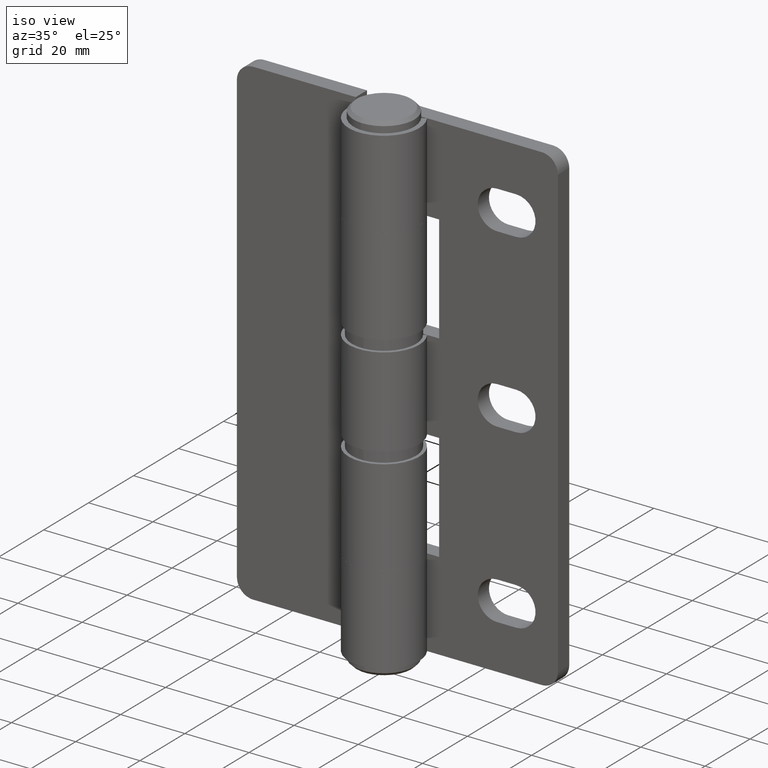
[diagram: clean part render]
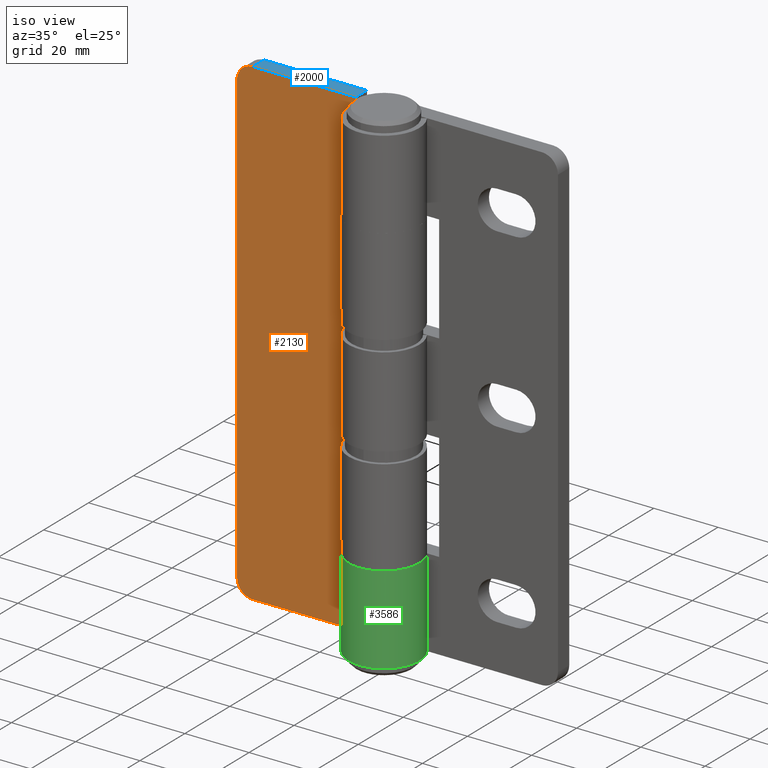
[diagram: same view with three faces highlighted in distinct colors, each labeled with its STEP entity id]
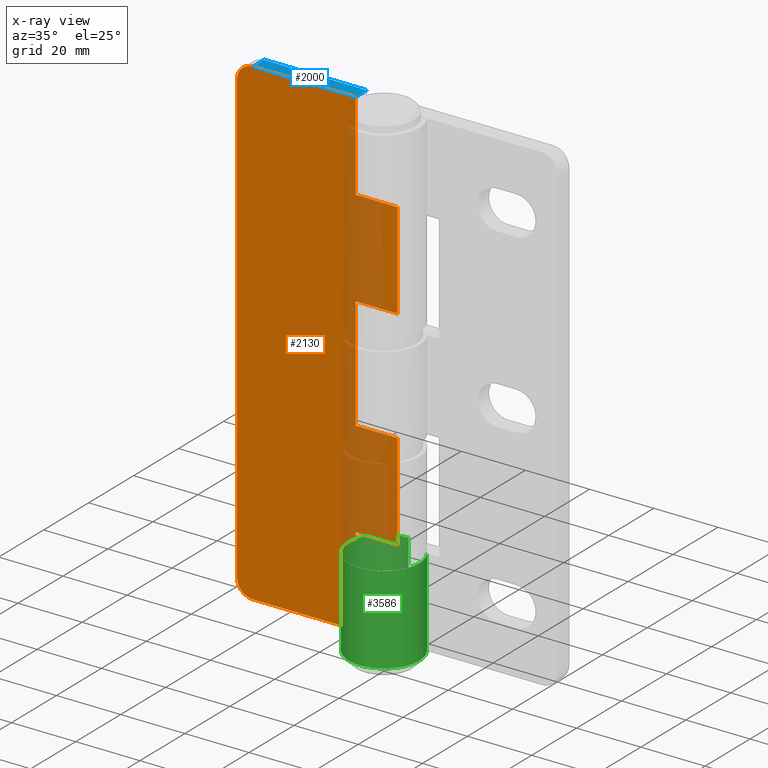
[diagram: x-ray of the same camera — body ghosted, the three highlighted faces saturated]
A machine part, iso view with three faces highlighted in distinct colors.
The next image is the same camera in x-ray (body ghosted, the three faces saturated) — at least one of them is partly hidden behind the body in this view.
Their STEP definitions:

[orange] entity #2130 — the highlighted face is a freeform B-spline surface patch.
#1359=CARTESIAN_POINT('',(-13.0,6.0,122.500000000000000));
#1360=VERTEX_POINT('',#1359);
#1366=CARTESIAN_POINT('',(3.673819E-016,6.0,122.500000000000000));
#1367=VERTEX_POINT('',#1366);
#1368=CARTESIAN_POINT('',(3.673819E-016,6.0,122.500000000000000));
#1369=CARTESIAN_POINT('',(-13.0,6.0,122.500000000000000));
#1370=QUASI_UNIFORM_CURVE('',1,(#1368,#1369),.UNSPECIFIED.,.F.,.U.);
#1371=EDGE_CURVE('',#1367,#1360,#1370,.T.);
#1436=CARTESIAN_POINT('',(-13.0,6.0,150.0));
#1437=VERTEX_POINT('',#1436);
#1443=CARTESIAN_POINT('',(-13.0,6.0,122.500000000000000));
#1444=CARTESIAN_POINT('',(-13.0,6.0,150.0));
#1445=QUASI_UNIFORM_CURVE('',1,(#1443,#1444),.UNSPECIFIED.,.F.,.U.);
#1446=EDGE_CURVE('',#1360,#1437,#1445,.T.);
#1465=CARTESIAN_POINT('',(-13.0,6.0,57.500000000000000));
#1466=VERTEX_POINT('',#1465);
#1472=CARTESIAN_POINT('',(3.673819E-016,6.0,57.500000000000000));
#1473=VERTEX_POINT('',#1472);
#1474=CARTESIAN_POINT('',(3.673819E-016,6.0,57.500000000000000));
#1475=CARTESIAN_POINT('',(-13.0,6.0,57.500000000000000));
#1476=QUASI_UNIFORM_CURVE('',1,(#1474,#1475),.UNSPECIFIED.,.F.,.U.);
#1477=EDGE_CURVE('',#1473,#1466,#1476,.T.);
#1542=CARTESIAN_POINT('',(-13.0,6.0,92.500000000000000));
#1543=VERTEX_POINT('',#1542);
#1549=CARTESIAN_POINT('',(-13.0,6.0,57.500000000000000));
#1550=CARTESIAN_POINT('',(-13.0,6.0,92.500000000000000));
#1551=QUASI_UNIFORM_CURVE('',1,(#1549,#1550),.UNSPECIFIED.,.F.,.U.);
#1552=EDGE_CURVE('',#1466,#1543,#1551,.T.);
#1598=CARTESIAN_POINT('',(3.673819E-016,6.0,92.500000000000000));
#1599=VERTEX_POINT('',#1598);
#1619=CARTESIAN_POINT('',(-13.0,6.0,92.500000000000000));
#1620=CARTESIAN_POINT('',(3.673819E-016,6.0,92.500000000000000));
#1621=QUASI_UNIFORM_CURVE('',1,(#1619,#1620),.UNSPECIFIED.,.F.,.U.);
#1622=EDGE_CURVE('',#1543,#1599,#1621,.T.);
#1632=CARTESIAN_POINT('',(-13.0,6.0,0.0));
#1633=VERTEX_POINT('',#1632);
#1648=CARTESIAN_POINT('',(-13.0,6.0,27.500000000000000));
#1649=VERTEX_POINT('',#1648);
#1655=CARTESIAN_POINT('',(-13.0,6.0,0.0));
#1656=CARTESIAN_POINT('',(-13.0,6.0,27.500000000000000));
#1657=QUASI_UNIFORM_CURVE('',1,(#1655,#1656),.UNSPECIFIED.,.F.,.U.);
#1658=EDGE_CURVE('',#1633,#1649,#1657,.T.);
#1704=CARTESIAN_POINT('',(3.673819E-016,6.0,27.500000000000000));
#1705=VERTEX_POINT('',#1704);
#1725=CARTESIAN_POINT('',(-13.0,6.0,27.500000000000000));
#1726=CARTESIAN_POINT('',(3.673819E-016,6.0,27.500000000000000));
#1727=QUASI_UNIFORM_CURVE('',1,(#1725,#1726),.UNSPECIFIED.,.F.,.U.);
#1728=EDGE_CURVE('',#1649,#1705,#1727,.T.);
#1747=CARTESIAN_POINT('',(-50.0,6.0,5.0));
#1748=VERTEX_POINT('',#1747);
#1749=CARTESIAN_POINT('',(-45.0,6.0,0.0));
#1750=VERTEX_POINT('',#1749);
#1751=CARTESIAN_POINT('',(-49.999999999999993,6.0,5.0));
#1752=CARTESIAN_POINT('',(-49.999999999999986,6.0,0.0));
#1753=CARTESIAN_POINT('',(-45.0,6.0,0.0));
#1761=(BOUNDED_CURVE()B_SPLINE_CURVE(2,(#1751,#1752,#1753),.UNSPECIFIED.,.F.,.U.)CURVE()GEOMETRIC_REPRESENTATION_ITEM()QUASI_UNIFORM_CURVE()RATIONAL_B_SPLINE_CURVE((1.0,0.707106781186548,1.0))REPRESENTATION_ITEM(''));
#1762=EDGE_CURVE('',#1748,#1750,#1761,.T.);
#1808=CARTESIAN_POINT('',(-45.0,6.0,150.0));
#1809=VERTEX_POINT('',#1808);
#1810=CARTESIAN_POINT('',(-50.0,6.0,145.0));
#1811=VERTEX_POINT('',#1810);
#1812=CARTESIAN_POINT('',(-45.0,6.0,150.0));
#1813=CARTESIAN_POINT('',(-49.999999999999986,6.0,149.999999999999940));
#1814=CARTESIAN_POINT('',(-49.999999999999993,6.0,145.0));
#1822=(BOUNDED_CURVE()B_SPLINE_CURVE(2,(#1812,#1813,#1814),.UNSPECIFIED.,.F.,.U.)CURVE()GEOMETRIC_REPRESENTATION_ITEM()QUASI_UNIFORM_CURVE()RATIONAL_B_SPLINE_CURVE((1.0,0.707106781186548,1.0))REPRESENTATION_ITEM(''));
#1823=EDGE_CURVE('',#1809,#1811,#1822,.T.);
#1866=CARTESIAN_POINT('',(-50.0,6.0,145.0));
#1867=CARTESIAN_POINT('',(-50.0,6.0,5.0));
#1868=QUASI_UNIFORM_CURVE('',1,(#1866,#1867),.UNSPECIFIED.,.F.,.U.);
#1869=EDGE_CURVE('',#1811,#1748,#1868,.T.);
#1886=CARTESIAN_POINT('',(-13.0,6.0,0.0));
#1887=CARTESIAN_POINT('',(-45.0,6.0,0.0));
#1888=QUASI_UNIFORM_CURVE('',1,(#1886,#1887),.UNSPECIFIED.,.F.,.U.);
#1889=EDGE_CURVE('',#1633,#1750,#1888,.T.);
#1918=CARTESIAN_POINT('',(3.673819E-016,6.0,57.500000000000000));
#1919=CARTESIAN_POINT('',(3.673819E-016,6.0,27.500000000000000));
#1920=QUASI_UNIFORM_CURVE('',1,(#1918,#1919),.UNSPECIFIED.,.F.,.U.);
#1921=EDGE_CURVE('',#1473,#1705,#1920,.T.);
#1993=CARTESIAN_POINT('',(-13.0,6.0,150.0));
#1994=CARTESIAN_POINT('',(-45.0,6.0,150.0));
#1995=QUASI_UNIFORM_CURVE('',1,(#1993,#1994),.UNSPECIFIED.,.F.,.U.);
#1996=EDGE_CURVE('',#1437,#1809,#1995,.T.);
#2024=CARTESIAN_POINT('',(3.673819E-016,6.0,122.500000000000000));
#2025=CARTESIAN_POINT('',(3.673819E-016,6.0,92.500000000000000));
#2026=QUASI_UNIFORM_CURVE('',1,(#2024,#2025),.UNSPECIFIED.,.F.,.U.);
#2027=EDGE_CURVE('',#1367,#1599,#2026,.T.);
#2109=CARTESIAN_POINT('',(-52.497499903090286,6.0,157.492499709270900));
#2110=CARTESIAN_POINT('',(-52.497499903090286,6.0,-7.492503732584416));
#2111=CARTESIAN_POINT('',(2.497501244194802,6.0,157.492499709270900));
#2112=CARTESIAN_POINT('',(2.497501244194802,6.0,-7.492503732584416));
#2113=B_SPLINE_SURFACE_WITH_KNOTS('',1,1,((#2109,#2111),(#2110,#2112)),.UNSPECIFIED.,.F.,.F.,.U.,(2,2),(2,2),(0.0,164.985003441855300),(0.0,54.995001147285102),.UNSPECIFIED.);
#2114=ORIENTED_EDGE('',*,*,#1371,.T.);
#2115=ORIENTED_EDGE('',*,*,#1446,.T.);
#2116=ORIENTED_EDGE('',*,*,#1996,.T.);
#2117=ORIENTED_EDGE('',*,*,#1823,.T.);
#2118=ORIENTED_EDGE('',*,*,#1869,.T.);
#2119=ORIENTED_EDGE('',*,*,#1762,.T.);
#2120=ORIENTED_EDGE('',*,*,#1889,.F.);
#2121=ORIENTED_EDGE('',*,*,#1658,.T.);
#2122=ORIENTED_EDGE('',*,*,#1728,.T.);
#2123=ORIENTED_EDGE('',*,*,#1921,.F.);
#2124=ORIENTED_EDGE('',*,*,#1477,.T.);
#2125=ORIENTED_EDGE('',*,*,#1552,.T.);
#2126=ORIENTED_EDGE('',*,*,#1622,.T.);
#2127=ORIENTED_EDGE('',*,*,#2027,.F.);
#2128=EDGE_LOOP('',(#2114,#2115,#2116,#2117,#2118,#2119,#2120,#2121,#2122,#2123,#2124,#2125,#2126,#2127));
#2129=FACE_OUTER_BOUND('',#2128,.T.);
#2130=ADVANCED_FACE('',(#2129),#2113,.T.);

[blue] entity #2000 — the highlighted face is a freeform B-spline surface patch.
#1429=CARTESIAN_POINT('',(-13.0,11.0,150.0));
#1430=VERTEX_POINT('',#1429);
#1436=CARTESIAN_POINT('',(-13.0,6.0,150.0));
#1437=VERTEX_POINT('',#1436);
#1438=CARTESIAN_POINT('',(-13.0,6.0,150.0));
#1439=CARTESIAN_POINT('',(-13.0,11.0,150.0));
#1440=QUASI_UNIFORM_CURVE('',1,(#1438,#1439),.UNSPECIFIED.,.F.,.U.);
#1441=EDGE_CURVE('',#1437,#1430,#1440,.T.);
#1808=CARTESIAN_POINT('',(-45.0,6.0,150.0));
#1809=VERTEX_POINT('',#1808);
#1825=CARTESIAN_POINT('',(-45.0,11.0,150.0));
#1826=VERTEX_POINT('',#1825);
#1827=CARTESIAN_POINT('',(-45.0,11.0,150.0));
#1828=CARTESIAN_POINT('',(-45.0,6.0,150.0));
#1829=QUASI_UNIFORM_CURVE('',1,(#1827,#1828),.UNSPECIFIED.,.F.,.U.);
#1830=EDGE_CURVE('',#1826,#1809,#1829,.T.);
#1981=CARTESIAN_POINT('',(-46.598399937977788,5.750250009690968,150.0));
#1982=CARTESIAN_POINT('',(-11.401599203715330,5.750250009690968,150.0));
#1983=CARTESIAN_POINT('',(-46.598399937977788,11.249750124419480,150.0));
#1984=CARTESIAN_POINT('',(-11.401599203715330,11.249750124419480,150.0));
#1985=B_SPLINE_SURFACE_WITH_KNOTS('',1,1,((#1981,#1983),(#1982,#1984)),.UNSPECIFIED.,.F.,.F.,.U.,(2,2),(2,2),(0.0,35.196800734262467),(0.0,5.499500114728511),.UNSPECIFIED.);
#1986=ORIENTED_EDGE('',*,*,#1441,.T.);
#1987=CARTESIAN_POINT('',(-45.0,11.0,150.0));
#1988=CARTESIAN_POINT('',(-13.0,11.0,150.0));
#1989=QUASI_UNIFORM_CURVE('',1,(#1987,#1988),.UNSPECIFIED.,.F.,.U.);
#1990=EDGE_CURVE('',#1826,#1430,#1989,.T.);
#1991=ORIENTED_EDGE('',*,*,#1990,.F.);
#1992=ORIENTED_EDGE('',*,*,#1830,.T.);
#1993=CARTESIAN_POINT('',(-13.0,6.0,150.0));
#1994=CARTESIAN_POINT('',(-45.0,6.0,150.0));
#1995=QUASI_UNIFORM_CURVE('',1,(#1993,#1994),.UNSPECIFIED.,.F.,.U.);
#1996=EDGE_CURVE('',#1437,#1809,#1995,.T.);
#1997=ORIENTED_EDGE('',*,*,#1996,.F.);
#1998=EDGE_LOOP('',(#1986,#1991,#1992,#1997));
#1999=FACE_OUTER_BOUND('',#1998,.T.);
#2000=ADVANCED_FACE('',(#1999),#1985,.T.);

[green] entity #3586 — the highlighted face is a freeform B-spline surface patch.
#2353=CARTESIAN_POINT('',(0.0,11.0,27.500000000000000));
#2354=VERTEX_POINT('',#2353);
#2355=CARTESIAN_POINT('',(9.251891698458209,5.950000000000000,27.500000000000000));
#2356=VERTEX_POINT('',#2355);
#2357=CARTESIAN_POINT('',(0.0,11.0,27.500000000000000));
#2358=CARTESIAN_POINT('',(-8.545764332510323,11.0,27.500000000000011));
#2359=CARTESIAN_POINT('',(-10.658527187710140,2.719521683834106,27.500000000000000));
#2360=CARTESIAN_POINT('',(-12.771290042909955,-5.560956632331798,27.500000000000011));
#2361=CARTESIAN_POINT('',(-5.270199237220546,-9.655309420210207,27.500000000000000));
#2362=CARTESIAN_POINT('',(2.230891568468854,-13.749662208088614,27.500000000000011));
#2363=CARTESIAN_POINT('',(8.052632441574282,-7.493671380632152,27.500000000000000));
#2364=CARTESIAN_POINT('',(13.874373314679705,-1.237680553175694,27.500000000000011));
#2365=CARTESIAN_POINT('',(9.251891698458215,5.949999999999996,27.500000000000000));
#2373=(BOUNDED_CURVE()B_SPLINE_CURVE(2,(#2357,#2358,#2359,#2360,#2361,#2362,#2363,#2364,#2365),.UNSPECIFIED.,.F.,.U.)B_SPLINE_CURVE_WITH_KNOTS((3,2,2,2,3),(0.0,0.250000000000000,0.500000000000000,0.750000000000000,1.0),.UNSPECIFIED.)CURVE()GEOMETRIC_REPRESENTATION_ITEM()RATIONAL_B_SPLINE_CURVE((1.0,0.789692738976660,1.0,0.789692738976660,1.0,0.789692738976660,1.0,0.789692738976660,1.0))REPRESENTATION_ITEM(''));
#2374=EDGE_CURVE('',#2354,#2356,#2373,.T.);
#3197=CARTESIAN_POINT('',(0.0,11.0,0.0));
#3198=VERTEX_POINT('',#3197);
#3233=CARTESIAN_POINT('',(9.251891698458209,5.950000000000000,0.0));
#3234=VERTEX_POINT('',#3233);
#3240=CARTESIAN_POINT('',(9.251891698458211,5.950000000000002,0.0));
#3241=CARTESIAN_POINT('',(13.874373314679708,-1.237680553175686,0.0));
#3242=CARTESIAN_POINT('',(8.052632441574287,-7.493671380632148,0.0));
#3243=CARTESIAN_POINT('',(2.230891568468870,-13.749662208088605,0.0));
#3244=CARTESIAN_POINT('',(-5.270199237220531,-9.655309420210214,0.0));
#3245=CARTESIAN_POINT('',(-12.771290042909945,-5.560956632331815,0.0));
#3246=CARTESIAN_POINT('',(-10.658527187710140,2.719521683834099,0.0));
#3247=CARTESIAN_POINT('',(-8.545764332510327,11.0,0.0));
#3248=CARTESIAN_POINT('',(0.0,11.0,0.0));
#3256=(BOUNDED_CURVE()B_SPLINE_CURVE(2,(#3240,#3241,#3242,#3243,#3244,#3245,#3246,#3247,#3248),.UNSPECIFIED.,.F.,.U.)B_SPLINE_CURVE_WITH_KNOTS((3,2,2,2,3),(0.0,0.250000000000000,0.500000000000000,0.750000000000000,1.0),.UNSPECIFIED.)CURVE()GEOMETRIC_REPRESENTATION_ITEM()RATIONAL_B_SPLINE_CURVE((1.0,0.789692738976660,1.0,0.789692738976660,1.0,0.789692738976660,1.0,0.789692738976660,1.0))REPRESENTATION_ITEM(''));
#3257=EDGE_CURVE('',#3234,#3198,#3256,.T.);
#3343=CARTESIAN_POINT('',(9.251891698458209,5.950000000000000,27.500000000000000));
#3344=CARTESIAN_POINT('',(9.251891698458209,5.950000000000000,0.0));
#3345=QUASI_UNIFORM_CURVE('',1,(#3343,#3344),.UNSPECIFIED.,.F.,.U.);
#3346=EDGE_CURVE('',#2356,#3234,#3345,.T.);
#3455=CARTESIAN_POINT('',(0.0,11.0,27.500000000000000));
#3456=CARTESIAN_POINT('',(0.0,11.0,0.0));
#3457=QUASI_UNIFORM_CURVE('',1,(#3455,#3456),.UNSPECIFIED.,.F.,.U.);
#3458=EDGE_CURVE('',#2354,#3198,#3457,.T.);
#3558=CARTESIAN_POINT('',(0.336778339058821,10.994843352696790,28.187500000000000));
#3559=CARTESIAN_POINT('',(0.336778339058821,10.994843352696790,-0.704687500000002));
#3560=CARTESIAN_POINT('',(-13.485634154904789,11.418231751437471,28.187499999999996));
#3561=CARTESIAN_POINT('',(-13.485634154904789,11.418231751437471,-0.704687500000002));
#3562=CARTESIAN_POINT('',(-10.788804872322141,-2.145154872487774,28.187500000000000));
#3563=CARTESIAN_POINT('',(-10.788804872322141,-2.145154872487774,-0.704687500000002));
#3564=CARTESIAN_POINT('',(-8.091975589739485,-15.708541496413019,28.187499999999996));
#3565=CARTESIAN_POINT('',(-8.091975589739485,-15.708541496413019,-0.704687500000002));
#3566=CARTESIAN_POINT('',(4.517127723219371,-10.029733652102779,28.187500000000000));
#3567=CARTESIAN_POINT('',(4.517127723219371,-10.029733652102779,-0.704687500000002));
#3568=CARTESIAN_POINT('',(17.126231036178226,-4.350925807792535,28.187499999999996));
#3569=CARTESIAN_POINT('',(17.126231036178226,-4.350925807792535,-0.704687500000002));
#3570=CARTESIAN_POINT('',(8.756539584433936,6.657553192145108,28.187500000000000));
#3571=CARTESIAN_POINT('',(8.756539584433936,6.657553192145108,-0.704687500000002));
#3579=(BOUNDED_SURFACE()B_SPLINE_SURFACE(1,2,((#3558,#3560,#3562,#3564,#3566,#3568,#3570),(#3559,#3561,#3563,#3565,#3567,#3569,#3571)),.UNSPECIFIED.,.F.,.F.,.U.)B_SPLINE_SURFACE_WITH_KNOTS((2,2),(3,2,2,3),(0.0,28.892187500000009),(0.0,21.223080595973101,42.446161191946203,63.669241787919297),.UNSPECIFIED.)GEOMETRIC_REPRESENTATION_ITEM()RATIONAL_B_SPLINE_SURFACE(((1.0,0.622514636637620,1.0,0.622514636637620,1.0,0.622514636637620,1.0),(1.0,0.622514636637620,1.0,0.622514636637620,1.0,0.622514636637620,1.0)))REPRESENTATION_ITEM('')SURFACE());
#3580=ORIENTED_EDGE('',*,*,#3346,.F.);
#3581=ORIENTED_EDGE('',*,*,#2374,.F.);
#3582=ORIENTED_EDGE('',*,*,#3458,.T.);
#3583=ORIENTED_EDGE('',*,*,#3257,.F.);
#3584=EDGE_LOOP('',(#3580,#3581,#3582,#3583));
#3585=FACE_OUTER_BOUND('',#3584,.T.);
#3586=ADVANCED_FACE('',(#3585),#3579,.T.);